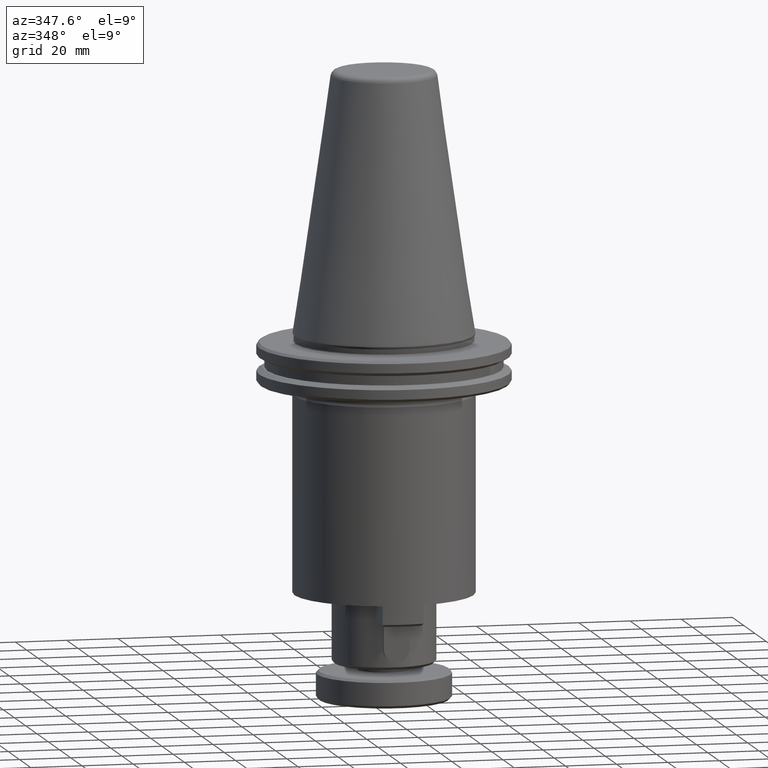
[diagram: clean part render]
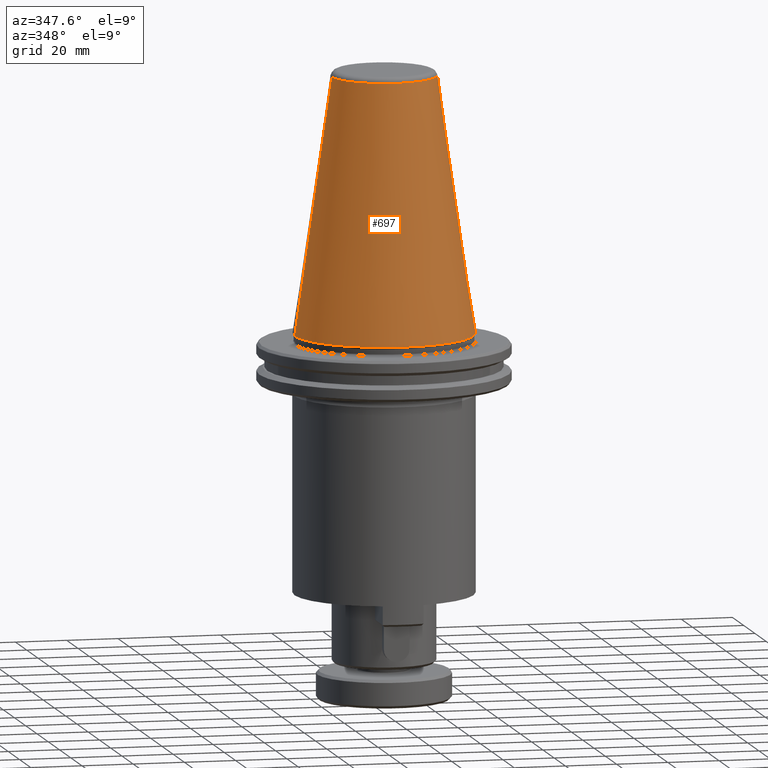
[diagram: same view with one face highlighted and labeled with its STEP entity id]
A machine part, auxiliary view. The second image highlights one B-rep face of the part: STEP entity #697.
In plain terms, the highlighted conical surface has half-angle 8.297 deg.
Its self-contained STEP definition (entity closure, byte-faithful):
#128 = FACE_OUTER_BOUND ( 'NONE', #797, .T. ) ;
#179 = AXIS2_PLACEMENT_3D ( 'NONE', #2529, #2950, #1821 ) ;
#336 = ORIENTED_EDGE ( 'NONE', *, *, #934, .T. ) ;
#394 = VERTEX_POINT ( 'NONE', #1580 ) ;
#446 = AXIS2_PLACEMENT_3D ( 'NONE', #2694, #1297, #2919 ) ;
#684 = CARTESIAN_POINT ( 'NONE',  ( 142.5512047354212900, 190.0907862128020700, 323.4110493773521900 ) ) ;
#697 = ADVANCED_FACE ( 'NONE', ( #128 ), #1745, .T. ) ;
#797 = EDGE_LOOP ( 'NONE', ( #1934, #336, #2907, #1783 ) ) ;
#813 = EDGE_CURVE ( 'NONE', #2534, #2059, #2837, .T. ) ;
#921 = DIRECTION ( 'NONE',  ( 0.1443082272502952400, 1.767266085927029200E-017, -0.9895327864946552600 ) ) ;
#934 = EDGE_CURVE ( 'NONE', #2534, #394, #2404, .T. ) ;
#987 = VECTOR ( 'NONE', #921, 1000.000000000000100 ) ;
#1279 = CARTESIAN_POINT ( 'NONE',  ( 122.1529126039459800, 190.0907862128020700, 223.8002788091370400 ) ) ;
#1297 = DIRECTION ( 'NONE',  ( -0.0000000000000000000, -0.0000000000000000000, -1.000000000000000000 ) ) ;
#1315 = AXIS2_PLACEMENT_3D ( 'NONE', #1279, #2906, #1527 ) ;
#1320 = VERTEX_POINT ( 'NONE', #1608 ) ;
#1382 = LINE ( 'NONE', #1951, #2469 ) ;
#1527 = DIRECTION ( 'NONE',  ( -1.000000000000000000, 0.0000000000000000000, 0.0000000000000000000 ) ) ;
#1580 = CARTESIAN_POINT ( 'NONE',  ( 101.7546204724706600, 190.0907862128020700, 323.4110493773521900 ) ) ;
#1608 = CARTESIAN_POINT ( 'NONE',  ( 87.22791260394602400, 190.0907862128020700, 223.8002788091370400 ) ) ;
#1745 = CONICAL_SURFACE ( 'NONE', #179, 20.39829213147531600, 0.1448138465302273600 ) ;
#1783 = ORIENTED_EDGE ( 'NONE', *, *, #2343, .F. ) ;
#1821 = DIRECTION ( 'NONE',  ( -1.000000000000000000, 0.0000000000000000000, 0.0000000000000000000 ) ) ;
#1934 = ORIENTED_EDGE ( 'NONE', *, *, #813, .F. ) ;
#1951 = CARTESIAN_POINT ( 'NONE',  ( 101.7546204724706600, 190.0907862128020700, 323.4110493773521900 ) ) ;
#2059 = VERTEX_POINT ( 'NONE', #2154 ) ;
#2154 = CARTESIAN_POINT ( 'NONE',  ( 157.0779126039459500, 190.0907862128020700, 223.8002788091370400 ) ) ;
#2188 = DIRECTION ( 'NONE',  ( -0.1443082272502952400, 0.0000000000000000000, -0.9895327864946552600 ) ) ;
#2255 = CIRCLE ( 'NONE', #1315, 34.92499999999994000 ) ;
#2280 = EDGE_CURVE ( 'NONE', #394, #1320, #1382, .T. ) ;
#2343 = EDGE_CURVE ( 'NONE', #2059, #1320, #2255, .T. ) ;
#2404 = CIRCLE ( 'NONE', #446, 20.39829213147531600 ) ;
#2469 = VECTOR ( 'NONE', #2188, 1000.000000000000100 ) ;
#2529 = CARTESIAN_POINT ( 'NONE',  ( 122.1529126039459800, 190.0907862128020700, 323.4110493773521900 ) ) ;
#2534 = VERTEX_POINT ( 'NONE', #2927 ) ;
#2694 = CARTESIAN_POINT ( 'NONE',  ( 122.1529126039459800, 190.0907862128020700, 323.4110493773521900 ) ) ;
#2837 = LINE ( 'NONE', #684, #987 ) ;
#2906 = DIRECTION ( 'NONE',  ( -0.0000000000000000000, -0.0000000000000000000, -1.000000000000000000 ) ) ;
#2907 = ORIENTED_EDGE ( 'NONE', *, *, #2280, .T. ) ;
#2919 = DIRECTION ( 'NONE',  ( -1.000000000000000000, 0.0000000000000000000, 0.0000000000000000000 ) ) ;
#2927 = CARTESIAN_POINT ( 'NONE',  ( 142.5512047354212700, 190.0907862128020700, 323.4110493773521900 ) ) ;
#2950 = DIRECTION ( 'NONE',  ( -0.0000000000000000000, -0.0000000000000000000, -1.000000000000000000 ) ) ;